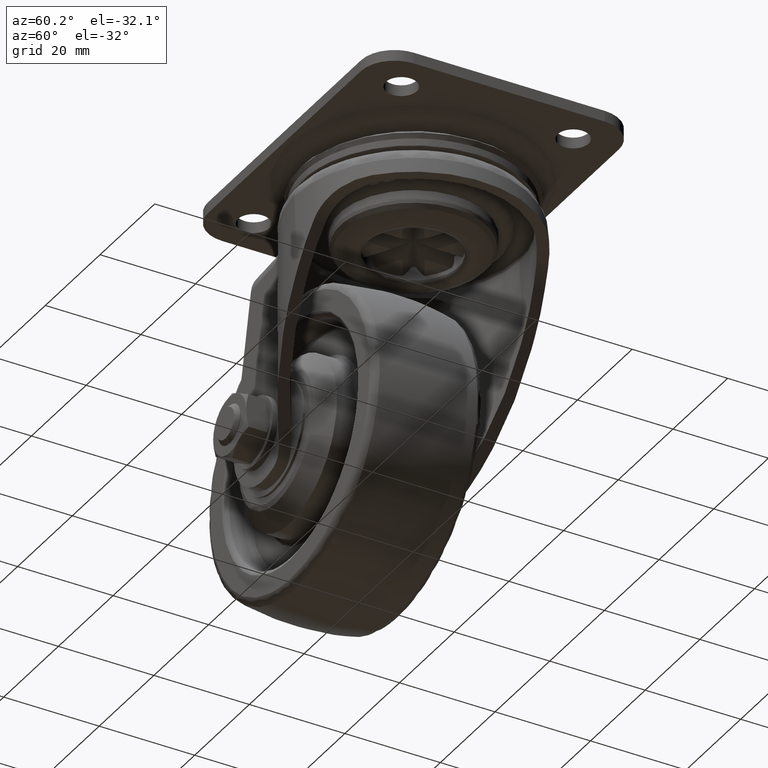
[diagram: clean part render]
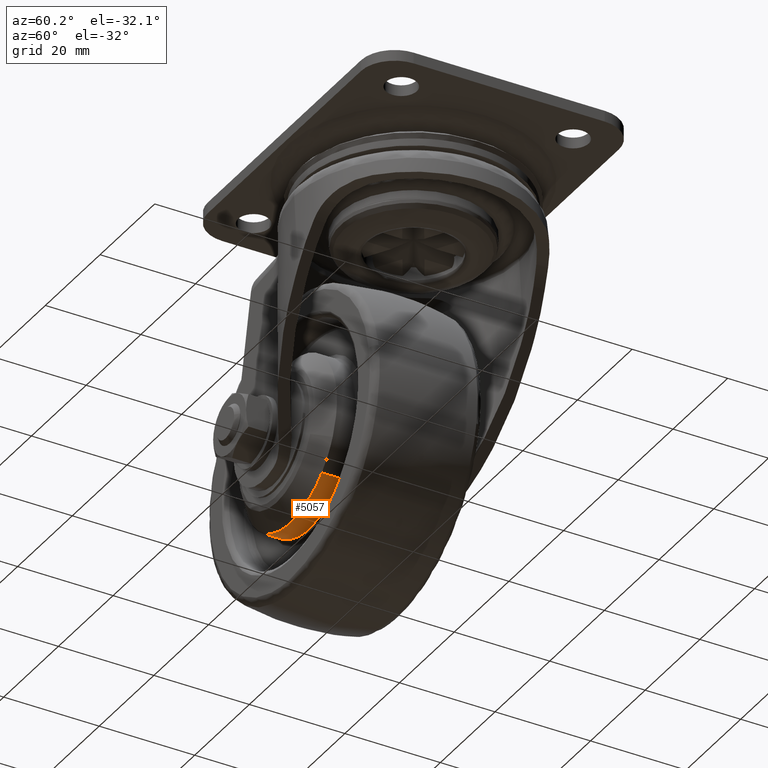
[diagram: same view with one face highlighted and labeled with its STEP entity id]
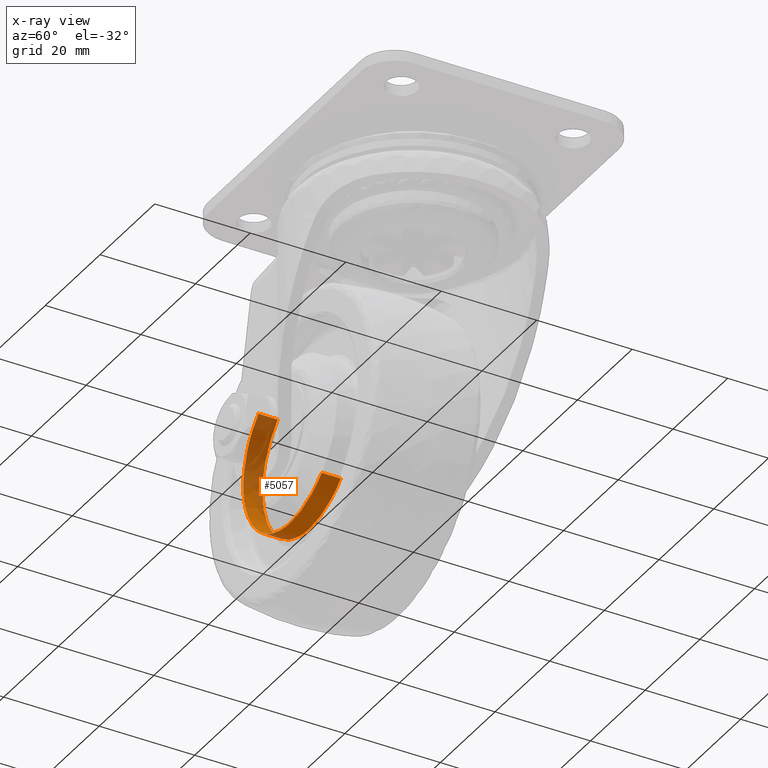
[diagram: x-ray of the same camera — body ghosted, the highlighted face saturated]
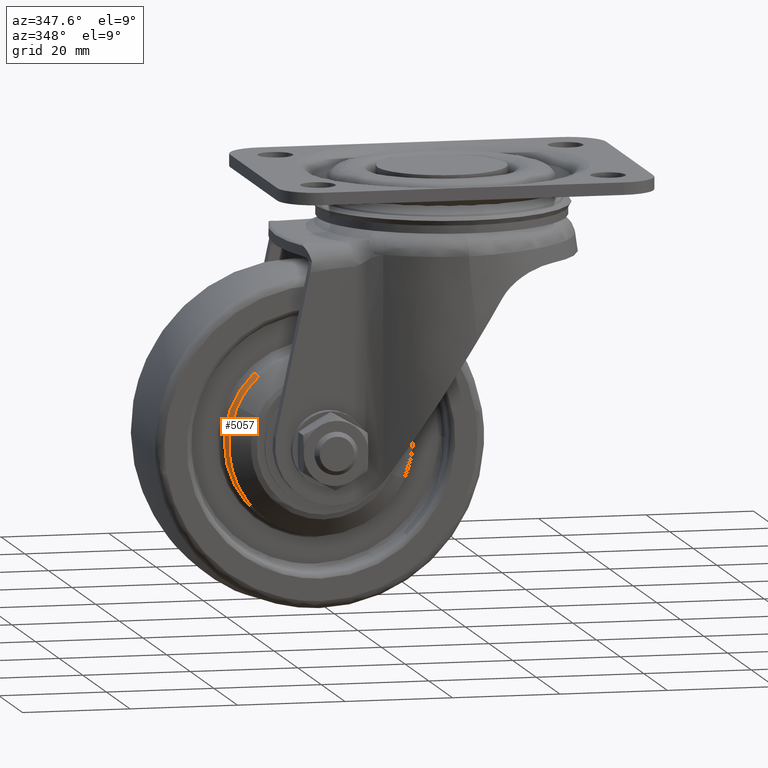
[diagram: same view with one face highlighted and labeled with its STEP entity id]
A machine part, auxiliary view. The second image highlights one B-rep face of the part: STEP entity #5057.
The next image is the same camera in x-ray: the body ghosted, the highlighted face saturated — about 44% of this face is hidden behind the body in this view.
A second angle (auxiliary view) of the same face is appended — the face is thin or edge-on in the first view.
In plain terms, the highlighted face is a freeform B-spline surface patch.
Its self-contained STEP definition (entity closure, byte-faithful):
#4617=CARTESIAN_POINT('',(-13.431735528923630,-7.499999999328994,-61.124465561034839));
#4618=VERTEX_POINT('',#4617);
#4632=CARTESIAN_POINT('',(-25.0,-7.500000000000000,-65.623117000000008));
#4633=VERTEX_POINT('',#4632);
#4634=CARTESIAN_POINT('',(-25.0,-7.500000000000000,-65.623117000000008));
#4635=CARTESIAN_POINT('',(-18.341152943586867,-7.499999999720929,-65.623117000000022));
#4636=CARTESIAN_POINT('',(-13.431735528923578,-7.499999999328994,-61.124465561034896));
#4644=(BOUNDED_CURVE()B_SPLINE_CURVE(2,(#4634,#4635,#4636),.UNSPECIFIED.,.F.,.U.)B_SPLINE_CURVE_WITH_KNOTS((3,3),(0.0,0.118415195973945),.UNSPECIFIED.)CURVE()GEOMETRIC_REPRESENTATION_ITEM()RATIONAL_B_SPLINE_CURVE((1.0,0.861267968379061,0.853959782456179))REPRESENTATION_ITEM(''));
#4645=EDGE_CURVE('',#4633,#4618,#4644,.T.);
#4647=CARTESIAN_POINT('',(-42.121847024188732,-7.499999998582665,-48.284747198354509));
#4648=VERTEX_POINT('',#4647);
#4649=CARTESIAN_POINT('',(-42.121847024188725,-7.499999998582665,-48.284747198354509));
#4650=CARTESIAN_POINT('',(-42.123199000000007,-7.499999998587063,-48.392328351764078));
#4651=CARTESIAN_POINT('',(-42.123199000000007,-7.499999998591515,-48.499918000000001));
#4652=CARTESIAN_POINT('',(-42.123199000000000,-7.499999999300182,-65.623117000000008));
#4653=CARTESIAN_POINT('',(-25.0,-7.500000000000000,-65.623117000000008));
#4661=(BOUNDED_CURVE()B_SPLINE_CURVE(2,(#4649,#4650,#4651,#4652,#4653),.UNSPECIFIED.,.F.,.U.)B_SPLINE_CURVE_WITH_KNOTS((3,2,3),(0.747784295920897,0.750000000000000,1.0),.UNSPECIFIED.)CURVE()GEOMETRIC_REPRESENTATION_ITEM()RATIONAL_B_SPLINE_CURVE((0.994854295642099,0.997404141201334,1.0,0.707106781186548,1.0))REPRESENTATION_ITEM(''));
#4662=EDGE_CURVE('',#4648,#4633,#4661,.T.);
#4711=CARTESIAN_POINT('',(-36.568264471076382,-7.499999999328994,-35.875370438965163));
#4712=VERTEX_POINT('',#4711);
#4713=CARTESIAN_POINT('',(-36.568264471076418,-7.499999999328994,-35.875370438965120));
#4714=CARTESIAN_POINT('',(-42.028778876102962,-7.499999998893062,-40.879009142061030));
#4715=CARTESIAN_POINT('',(-42.121847024188725,-7.499999998582665,-48.284747198354509));
#4723=(BOUNDED_CURVE()B_SPLINE_CURVE(2,(#4713,#4714,#4715),.UNSPECIFIED.,.F.,.U.)B_SPLINE_CURVE_WITH_KNOTS((3,3),(0.618415195973945,0.747784295920897),.UNSPECIFIED.)CURVE()GEOMETRIC_REPRESENTATION_ITEM()RATIONAL_B_SPLINE_CURVE((0.853959782456179,0.845975558579234,0.994854295642099))REPRESENTATION_ITEM(''));
#4724=EDGE_CURVE('',#4712,#4648,#4723,.T.);
#4922=CARTESIAN_POINT('',(-13.431736040646060,-11.499999999993660,-61.124466029946547));
#4923=VERTEX_POINT('',#4922);
#4939=CARTESIAN_POINT('',(-13.431735528923630,-7.499999999328994,-61.124465561034839));
#4940=CARTESIAN_POINT('',(-13.431736040646060,-11.499999999993660,-61.124466029946547));
#4941=QUASI_UNIFORM_CURVE('',1,(#4939,#4940),.UNSPECIFIED.,.F.,.U.);
#4942=EDGE_CURVE('',#4618,#4923,#4941,.T.);
#4947=CARTESIAN_POINT('',(-36.568263959353928,-11.499999999993660,-35.875369970053463));
#4948=VERTEX_POINT('',#4947);
#4949=CARTESIAN_POINT('',(-36.568264471076382,-7.499999999328994,-35.875370438965163));
#4950=CARTESIAN_POINT('',(-36.568263959353928,-11.499999999993660,-35.875369970053463));
#4951=QUASI_UNIFORM_CURVE('',1,(#4949,#4950),.UNSPECIFIED.,.F.,.U.);
#4952=EDGE_CURVE('',#4712,#4948,#4951,.T.);
#4987=CARTESIAN_POINT('',(-36.568265567454262,-7.399999998547231,-35.875371443610227));
#4988=CARTESIAN_POINT('',(-49.192812123844035,-7.399999998547231,-47.443637011064475));
#4989=CARTESIAN_POINT('',(-37.624546556389767,-7.399999998547231,-60.068183567454263));
#4990=CARTESIAN_POINT('',(-26.056280988935512,-7.399999998547231,-72.692730123844044));
#4991=CARTESIAN_POINT('',(-13.431734432545740,-7.399999998547231,-61.124464556389782));
#4992=CARTESIAN_POINT('',(-36.568265567454262,-11.602500000036320,-35.875371443610227));
#4993=CARTESIAN_POINT('',(-49.192812123844035,-11.602500000036322,-47.443637011064475));
#4994=CARTESIAN_POINT('',(-37.624546556389767,-11.602500000036320,-60.068183567454263));
#4995=CARTESIAN_POINT('',(-26.056280988935512,-11.602500000036322,-72.692730123844044));
#4996=CARTESIAN_POINT('',(-13.431734432545740,-11.602500000036320,-61.124464556389782));
#5004=(BOUNDED_SURFACE()B_SPLINE_SURFACE(2,1,((#4987,#4992),(#4988,#4993),(#4989,#4994),(#4990,#4995),(#4991,#4996)),.UNSPECIFIED.,.F.,.F.,.U.)B_SPLINE_SURFACE_WITH_KNOTS((3,2,3),(2,2),(0.0,28.370645028053669,56.741290056107339),(0.0,4.202500001489091),.UNSPECIFIED.)GEOMETRIC_REPRESENTATION_ITEM()RATIONAL_B_SPLINE_SURFACE(((1.0,1.0),(0.707106781186548,0.707106781186548),(1.0,1.0),(0.707106781186548,0.707106781186548),(1.0,1.0)))REPRESENTATION_ITEM('')SURFACE());
#5005=CARTESIAN_POINT('',(-25.0,-11.500000000000000,-65.623117000000008));
#5006=VERTEX_POINT('',#5005);
#5007=CARTESIAN_POINT('',(-25.0,-11.500000000000000,-65.623117000000008));
#5008=CARTESIAN_POINT('',(-18.341153343104565,-11.499999999997081,-65.623117000000121));
#5009=CARTESIAN_POINT('',(-13.431736040646063,-11.499999999993662,-61.124466029946547));
#5017=(BOUNDED_CURVE()B_SPLINE_CURVE(2,(#5007,#5008,#5009),.UNSPECIFIED.,.F.,.U.)B_SPLINE_CURVE_WITH_KNOTS((3,3),(0.0,0.118415189854884),.UNSPECIFIED.)CURVE()GEOMETRIC_REPRESENTATION_ITEM()RATIONAL_B_SPLINE_CURVE((1.0,0.861267975547988,0.853959783211475))REPRESENTATION_ITEM(''));
#5018=EDGE_CURVE('',#5006,#4923,#5017,.T.);
#5019=ORIENTED_EDGE('',*,*,#5018,.F.);
#5020=CARTESIAN_POINT('',(-40.581447923465561,-11.499999999990420,-41.399043081912623));
#5021=VERTEX_POINT('',#5020);
#5022=CARTESIAN_POINT('',(-40.581447923465561,-11.499999999990422,-41.399043081912623));
#5023=CARTESIAN_POINT('',(-42.123199000009663,-11.499999999991093,-44.782107054626977));
#5024=CARTESIAN_POINT('',(-42.123199000008533,-11.499999999992131,-48.499917999996107));
#5025=CARTESIAN_POINT('',(-42.123199000003339,-11.499999999996916,-65.623116999998487));
#5026=CARTESIAN_POINT('',(-25.0,-11.500000000000000,-65.623117000000008));
#5034=(BOUNDED_CURVE()B_SPLINE_CURVE(2,(#5022,#5023,#5024,#5025,#5026),.UNSPECIFIED.,.F.,.U.)B_SPLINE_CURVE_WITH_KNOTS((3,2,3),(0.679570116083287,0.750000000000000,1.0),.UNSPECIFIED.)CURVE()GEOMETRIC_REPRESENTATION_ITEM()RATIONAL_B_SPLINE_CURVE((0.881463982733490,0.917486258395904,1.0,0.707106781186548,1.0))REPRESENTATION_ITEM(''));
#5035=EDGE_CURVE('',#5021,#5006,#5034,.T.);
#5036=ORIENTED_EDGE('',*,*,#5035,.F.);
#5037=CARTESIAN_POINT('',(-36.568263959353921,-11.499999999993662,-35.875369970053463));
#5038=CARTESIAN_POINT('',(-39.136758122516405,-11.499999999991909,-38.228960640148529));
#5039=CARTESIAN_POINT('',(-40.581447923465568,-11.499999999990425,-41.399043081912616));
#5047=(BOUNDED_CURVE()B_SPLINE_CURVE(2,(#5037,#5038,#5039),.UNSPECIFIED.,.F.,.U.)B_SPLINE_CURVE_WITH_KNOTS((3,3),(0.618415189854884,0.679570116083287),.UNSPECIFIED.)CURVE()GEOMETRIC_REPRESENTATION_ITEM()RATIONAL_B_SPLINE_CURVE((0.853959783211475,0.850185504221169,0.881463982733490))REPRESENTATION_ITEM(''));
#5048=EDGE_CURVE('',#4948,#5021,#5047,.T.);
#5049=ORIENTED_EDGE('',*,*,#5048,.F.);
#5050=ORIENTED_EDGE('',*,*,#4952,.F.);
#5051=ORIENTED_EDGE('',*,*,#4724,.T.);
#5052=ORIENTED_EDGE('',*,*,#4662,.T.);
#5053=ORIENTED_EDGE('',*,*,#4645,.T.);
#5054=ORIENTED_EDGE('',*,*,#4942,.T.);
#5055=EDGE_LOOP('',(#5019,#5036,#5049,#5050,#5051,#5052,#5053,#5054));
#5056=FACE_OUTER_BOUND('',#5055,.T.);
#5057=ADVANCED_FACE('',(#5056),#5004,.T.);